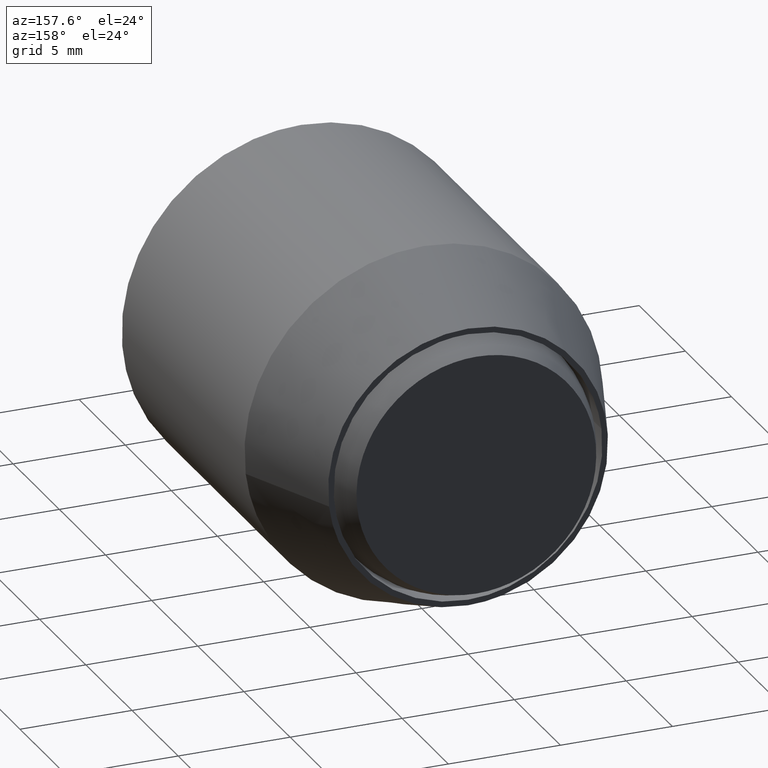
[diagram: clean part render]
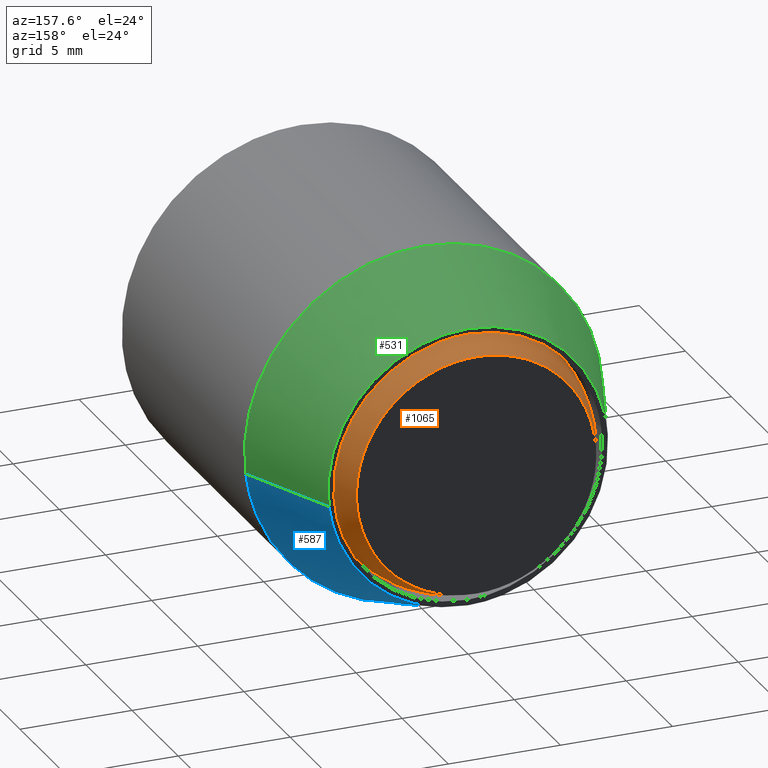
[diagram: same view with three faces highlighted in distinct colors, each labeled with its STEP entity id]
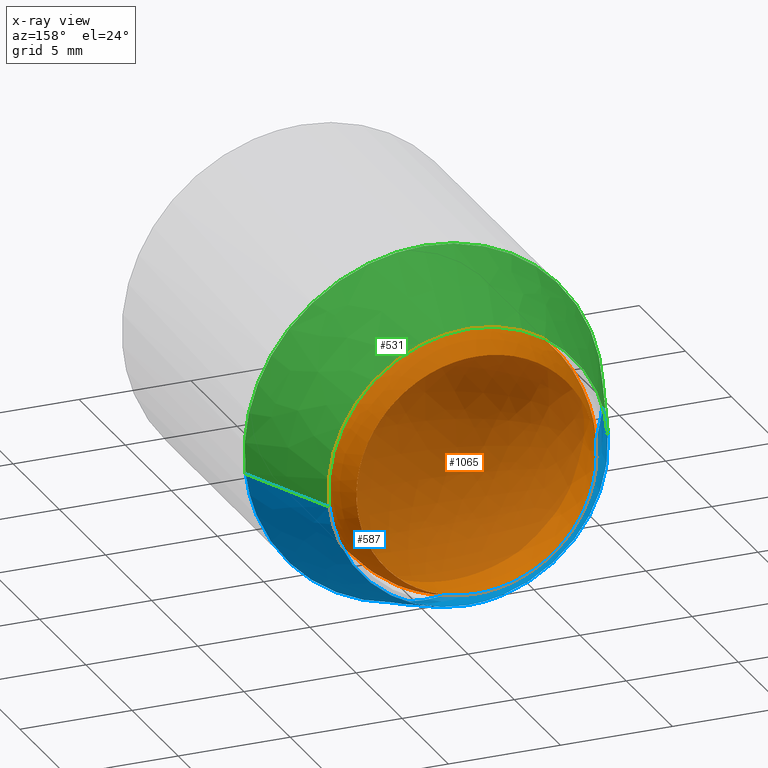
[diagram: x-ray of the same camera — body ghosted, the three highlighted faces saturated]
A machine part, auxiliary view with three faces highlighted in distinct colors.
The next image is the same camera in x-ray (body ghosted, the three faces saturated) — at least one of them is partly hidden behind the body in this view.
Their STEP definitions:

[orange] entity #1065 — the highlighted face is a freeform B-spline surface patch.
#985=CARTESIAN_POINT('',(-3.028492904751707,2.385804239656768,-3.028492904751710));
#986=CARTESIAN_POINT('',(-2.884428461843679,1.900500287936907,-3.845904615791576));
#987=CARTESIAN_POINT('',(-1.316923014224974,1.056373571428574,-5.267692056899906));
#988=CARTESIAN_POINT('',(1.316923014224978,1.056373571428573,-5.267692056899906));
#989=CARTESIAN_POINT('',(2.884428461843684,1.900500287936904,-3.845904615791576));
#990=CARTESIAN_POINT('',(3.028492904751713,2.385804239656764,-3.028492904751710));
#991=CARTESIAN_POINT('',(-3.845904615791572,1.900500287936908,-2.884428461843683));
#992=CARTESIAN_POINT('',(-3.950769042674927,1.056373571428576,-3.950769042674930));
#993=CARTESIAN_POINT('',(-2.089321569082892,-0.777943534199360,-6.267964707248678));
#994=CARTESIAN_POINT('',(2.089321569082894,-0.777943534199362,-6.267964707248678));
#995=CARTESIAN_POINT('',(3.950769042674932,1.056373571428571,-3.950769042674930));
#996=CARTESIAN_POINT('',(3.845904615791578,1.900500287936903,-2.884428461843683));
#997=CARTESIAN_POINT('',(-5.267692056899903,1.056373571428577,-1.316923014224976));
#998=CARTESIAN_POINT('',(-6.267964707248678,-0.777943534199357,-2.089321569082892));
#999=CARTESIAN_POINT('',(-5.052988182826796,-7.816155000000022,-5.052988182826790));
#1000=CARTESIAN_POINT('',(5.052988182826789,-7.816155000000029,-5.052988182826790));
#1001=CARTESIAN_POINT('',(6.267964707248678,-0.777943534199365,-2.089321569082892));
#1002=CARTESIAN_POINT('',(5.267692056899907,1.056373571428571,-1.316923014224976));
#1003=CARTESIAN_POINT('',(-5.267692056899903,1.056373571428577,1.316923014224976));
#1004=CARTESIAN_POINT('',(-6.267964707248678,-0.777943534199356,2.089321569082893));
#1005=CARTESIAN_POINT('',(-5.052988182826796,-7.816155000000018,5.052988182826794));
#1006=CARTESIAN_POINT('',(5.052988182826789,-7.816155000000025,5.052988182826794));
#1007=CARTESIAN_POINT('',(6.267964707248678,-0.777943534199364,2.089321569082893));
#1008=CARTESIAN_POINT('',(5.267692056899907,1.056373571428571,1.316923014224976));
#1009=CARTESIAN_POINT('',(-3.845904615791572,1.900500287936909,2.884428461843683));
#1010=CARTESIAN_POINT('',(-3.950769042674927,1.056373571428577,3.950769042674930));
#1011=CARTESIAN_POINT('',(-2.089321569082892,-0.777943534199358,6.267964707248678));
#1012=CARTESIAN_POINT('',(2.089321569082894,-0.777943534199361,6.267964707248678));
#1013=CARTESIAN_POINT('',(3.950769042674932,1.056373571428572,3.950769042674930));
#1014=CARTESIAN_POINT('',(3.845904615791578,1.900500287936904,2.884428461843683));
#1015=CARTESIAN_POINT('',(-3.028492904751707,2.385804239656768,3.028492904751710));
#1016=CARTESIAN_POINT('',(-2.884428461843679,1.900500287936908,3.845904615791576));
#1017=CARTESIAN_POINT('',(-1.316923014224974,1.056373571428575,5.267692056899906));
#1018=CARTESIAN_POINT('',(1.316923014224978,1.056373571428573,5.267692056899906));
#1019=CARTESIAN_POINT('',(2.884428461843684,1.900500287936905,3.845904615791576));
#1020=CARTESIAN_POINT('',(3.028492904751713,2.385804239656765,3.028492904751710));
#1028=(BOUNDED_SURFACE()B_SPLINE_SURFACE(2,2,((#985,#991,#997,#1003,#1009,#1015),(#986,#992,#998,#1004,#1010,#1016),(#987,#993,#999,#1005,#1011,#1017),(#988,#994,#1000,#1006,#1012,#1018),(#989,#995,#1001,#1007,#1013,#1019),(#990,#996,#1002,#1008,#1014,#1020)),.UNSPECIFIED.,.F.,.F.,.U.)B_SPLINE_SURFACE_WITH_KNOTS((3,1,1,1,3),(3,1,1,1,3),(0.0,7.460373557746063,14.920747115492130,22.381120673238190,29.841494230984249),(0.0,7.460373557746063,14.920747115492130,22.381120673238190,29.841494230984249),.UNSPECIFIED.)GEOMETRIC_REPRESENTATION_ITEM()RATIONAL_B_SPLINE_SURFACE(((6.673931016841607,5.255448262631205,3.836965508420803,3.836965508420803,5.255448262631205,6.673931016841607),(5.255448262631205,3.836965508420803,2.418482754210402,2.418482754210402,3.836965508420803,5.255448262631205),(3.836965508420803,2.418482754210402,1.0,1.0,2.418482754210402,3.836965508420803),(3.836965508420803,2.418482754210402,1.0,1.0,2.418482754210402,3.836965508420803),(5.255448262631205,3.836965508420803,2.418482754210402,2.418482754210402,3.836965508420803,5.255448262631205),(6.673931016841607,5.255448262631205,3.836965508420803,3.836965508420803,5.255448262631205,6.673931016841607)))REPRESENTATION_ITEM('')SURFACE());
#1029=CARTESIAN_POINT('',(0.0,0.900000000000000,-5.350000188408870));
#1030=VERTEX_POINT('',#1029);
#1031=CARTESIAN_POINT('',(0.0,0.900000000000000,5.350000188408869));
#1032=VERTEX_POINT('',#1031);
#1033=CARTESIAN_POINT('',(0.0,0.900000000000000,-5.350000188408870));
#1034=CARTESIAN_POINT('',(5.350000188408870,0.900000000000000,-5.350000188408870));
#1035=CARTESIAN_POINT('',(5.350000188408870,0.900000000000000,-4.785857E-016));
#1036=CARTESIAN_POINT('',(5.350000188408870,0.900000000000000,5.350000188408869));
#1037=CARTESIAN_POINT('',(0.0,0.900000000000000,5.350000188408869));
#1045=(BOUNDED_CURVE()B_SPLINE_CURVE(2,(#1033,#1034,#1035,#1036,#1037),.UNSPECIFIED.,.F.,.U.)B_SPLINE_CURVE_WITH_KNOTS((3,2,3),(0.0,0.250000000000000,0.500000000000000),.UNSPECIFIED.)CURVE()GEOMETRIC_REPRESENTATION_ITEM()RATIONAL_B_SPLINE_CURVE((1.0,0.707106781186548,1.0,0.707106781186548,1.0))REPRESENTATION_ITEM(''));
#1046=EDGE_CURVE('',#1030,#1032,#1045,.T.);
#1047=ORIENTED_EDGE('',*,*,#1046,.T.);
#1048=CARTESIAN_POINT('',(0.0,0.900000000000000,5.350000188408869));
#1049=CARTESIAN_POINT('',(-5.350000188408870,0.900000000000000,5.350000188408869));
#1050=CARTESIAN_POINT('',(-5.350000188408870,0.900000000000000,-4.785857E-016));
#1051=CARTESIAN_POINT('',(-5.350000188408870,0.900000000000000,-5.350000188408870));
#1052=CARTESIAN_POINT('',(0.0,0.900000000000000,-5.350000188408870));
#1060=(BOUNDED_CURVE()B_SPLINE_CURVE(2,(#1048,#1049,#1050,#1051,#1052),.UNSPECIFIED.,.F.,.U.)B_SPLINE_CURVE_WITH_KNOTS((3,2,3),(0.500000000000000,0.750000000000000,1.0),.UNSPECIFIED.)CURVE()GEOMETRIC_REPRESENTATION_ITEM()RATIONAL_B_SPLINE_CURVE((1.0,0.707106781186548,1.0,0.707106781186548,1.0))REPRESENTATION_ITEM(''));
#1061=EDGE_CURVE('',#1032,#1030,#1060,.T.);
#1062=ORIENTED_EDGE('',*,*,#1061,.T.);
#1063=EDGE_LOOP('',(#1047,#1062));
#1064=FACE_OUTER_BOUND('',#1063,.T.);
#1065=ADVANCED_FACE('',(#1064),#1028,.T.);

[blue] entity #587 — the highlighted face is a freeform B-spline surface patch.
#273=CARTESIAN_POINT('',(-1.874588268468437,-4.808085999999999,-7.777269368082868));
#274=VERTEX_POINT('',#273);
#280=CARTESIAN_POINT('',(0.0,-4.808085999999999,-8.000000000000002));
#281=VERTEX_POINT('',#280);
#282=CARTESIAN_POINT('',(-1.874588268468437,-4.808085999999999,-7.777269368082868));
#283=CARTESIAN_POINT('',(-0.950525753422238,-4.808085999999999,-8.000000000000002));
#284=CARTESIAN_POINT('',(0.0,-4.808085999999999,-8.000000000000002));
#292=(BOUNDED_CURVE()B_SPLINE_CURVE(2,(#282,#283,#284),.UNSPECIFIED.,.F.,.U.)B_SPLINE_CURVE_WITH_KNOTS((3,3),(0.959962736831104,1.0),.UNSPECIFIED.)CURVE()GEOMETRIC_REPRESENTATION_ITEM()RATIONAL_B_SPLINE_CURVE((0.921210942932808,0.953093428471923,1.0))REPRESENTATION_ITEM(''));
#293=EDGE_CURVE('',#274,#281,#292,.T.);
#295=CARTESIAN_POINT('',(7.944075678025839,-4.808083722398557,-0.944271337131582));
#296=VERTEX_POINT('',#295);
#297=CARTESIAN_POINT('',(0.0,-4.808085999999999,-8.000000000000002));
#298=CARTESIAN_POINT('',(7.105397995833197,-4.808084861199280,-7.999999951076153));
#299=CARTESIAN_POINT('',(7.944075678025839,-4.808083722398557,-0.944271337131582));
#307=(BOUNDED_CURVE()B_SPLINE_CURVE(2,(#297,#298,#299),.UNSPECIFIED.,.F.,.U.)B_SPLINE_CURVE_WITH_KNOTS((3,3),(0.0,0.229562525472899),.UNSPECIFIED.)CURVE()GEOMETRIC_REPRESENTATION_ITEM()RATIONAL_B_SPLINE_CURVE((1.0,0.731050771981190,0.956026856026257))REPRESENTATION_ITEM(''));
#308=EDGE_CURVE('',#281,#296,#307,.T.);
#327=CARTESIAN_POINT('',(-7.985077604216481,-4.808080615921306,0.488385069813843));
#328=VERTEX_POINT('',#327);
#442=CARTESIAN_POINT('',(-7.985077604216481,-4.808080615921306,0.488385069813843));
#443=CARTESIAN_POINT('',(-7.999999051485578,-4.808080714031474,0.244420452694563));
#444=CARTESIAN_POINT('',(-7.999999082489564,-4.808080816979779,-0.000000051795188));
#445=CARTESIAN_POINT('',(-7.999999881731105,-4.808083470850268,-6.300835843808900));
#446=CARTESIAN_POINT('',(-1.874588268468437,-4.808085999999999,-7.777269368082869));
#454=(BOUNDED_CURVE()B_SPLINE_CURVE(2,(#442,#443,#444,#445,#446),.UNSPECIFIED.,.F.,.U.)B_SPLINE_CURVE_WITH_KNOTS((3,2,3),(0.739333031101071,0.750000000000000,0.959962736831104),.UNSPECIFIED.)CURVE()GEOMETRIC_REPRESENTATION_ITEM()RATIONAL_B_SPLINE_CURVE((0.976072189251411,0.987502868576839,1.0,0.754013352714625,0.921210942932807))REPRESENTATION_ITEM(''));
#455=EDGE_CURVE('',#328,#274,#454,.T.);
#484=CARTESIAN_POINT('',(6.206309539772342,-2.137983E-012,-0.737713966616161));
#485=VERTEX_POINT('',#484);
#486=CARTESIAN_POINT('',(6.206309539772342,-2.137983E-012,-0.737713966616161));
#487=CARTESIAN_POINT('',(7.944075678025839,-4.808083722398557,-0.944271337131582));
#488=QUASI_UNIFORM_CURVE('',1,(#486,#487),.UNSPECIFIED.,.F.,.U.);
#489=EDGE_CURVE('',#485,#296,#488,.T.);
#508=CARTESIAN_POINT('',(-6.238341678451795,0.000002785024005,0.381550038736573));
#509=VERTEX_POINT('',#508);
#523=CARTESIAN_POINT('',(-6.238341678451795,0.000002785024005,0.381550038736573));
#524=CARTESIAN_POINT('',(-7.985077604216481,-4.808080615921306,0.488385069813843));
#525=QUASI_UNIFORM_CURVE('',1,(#523,#524),.UNSPECIFIED.,.F.,.U.);
#526=EDGE_CURVE('',#509,#328,#525,.T.);
#532=CARTESIAN_POINT('',(-6.194674092705711,0.120202150000000,0.378882498488205));
#533=CARTESIAN_POINT('',(-6.573556591193916,0.120202150000000,-5.815791594217505));
#534=CARTESIAN_POINT('',(-0.378882498488206,0.120202150000000,-6.194674092705712));
#535=CARTESIAN_POINT('',(5.471079290022653,0.120202150000000,-6.552473083471250));
#536=CARTESIAN_POINT('',(6.162865372994506,0.120202150000000,-0.732549968838508));
#537=CARTESIAN_POINT('',(-8.029838494741666,-4.931293203750000,0.491125961723621));
#538=CARTESIAN_POINT('',(-8.520964456465288,-4.931293203750001,-7.538712533018044));
#539=CARTESIAN_POINT('',(-0.491125961723622,-4.931293203750000,-8.029838494741668));
#540=CARTESIAN_POINT('',(7.091879642633344,-4.931293203750000,-8.493634986119947));
#541=CARTESIAN_POINT('',(7.988606481857203,-4.931293203750001,-0.949566974964459));
#549=(BOUNDED_SURFACE()B_SPLINE_SURFACE(2,1,((#532,#537),(#533,#538),(#534,#539),(#535,#540),(#536,#541)),.UNSPECIFIED.,.F.,.F.,.U.)B_SPLINE_SURFACE_WITH_KNOTS((3,2,3),(2,2),(0.0,13.329133553689720,26.125101765231850),(0.0,5.375689005745859),.UNSPECIFIED.)GEOMETRIC_REPRESENTATION_ITEM()RATIONAL_B_SPLINE_SURFACE(((1.0,1.0),(0.707106781186548,0.707106781186548),(1.0,1.0),(0.718822509939086,0.718822509939086),(0.977505800795127,0.977505800795127)))REPRESENTATION_ITEM('')SURFACE());
#550=ORIENTED_EDGE('',*,*,#308,.F.);
#551=ORIENTED_EDGE('',*,*,#293,.F.);
#552=ORIENTED_EDGE('',*,*,#455,.F.);
#553=ORIENTED_EDGE('',*,*,#526,.F.);
#554=CARTESIAN_POINT('',(0.0,0.0,-6.250000000000001));
#555=VERTEX_POINT('',#554);
#556=CARTESIAN_POINT('',(-6.238341678451796,0.000002785024005,0.381550038736573));
#557=CARTESIAN_POINT('',(-6.249999002763765,0.000002745001903,0.190953069299741));
#558=CARTESIAN_POINT('',(-6.249999018219906,0.000002702457179,-0.000000060047728));
#559=CARTESIAN_POINT('',(-6.249999524107872,0.000001309945177,-6.250000029106561));
#560=CARTESIAN_POINT('',(0.0,0.0,-6.250000000000001));
#568=(BOUNDED_CURVE()B_SPLINE_CURVE(2,(#556,#557,#558,#559,#560),.UNSPECIFIED.,.F.,.U.)B_SPLINE_CURVE_WITH_KNOTS((3,2,3),(0.739333052727923,0.750000000000000,1.0),.UNSPECIFIED.)CURVE()GEOMETRIC_REPRESENTATION_ITEM()RATIONAL_B_SPLINE_CURVE((0.976072235601904,0.987502893914272,1.0,0.707106781186547,1.0))REPRESENTATION_ITEM(''));
#569=EDGE_CURVE('',#509,#555,#568,.T.);
#570=ORIENTED_EDGE('',*,*,#569,.T.);
#571=CARTESIAN_POINT('',(0.0,0.0,-6.250000000000001));
#572=CARTESIAN_POINT('',(5.551090787175638,0.0,-6.250000000000003));
#573=CARTESIAN_POINT('',(6.206309539772342,-2.137983E-012,-0.737713966616161));
#581=(BOUNDED_CURVE()B_SPLINE_CURVE(2,(#571,#572,#573),.UNSPECIFIED.,.F.,.U.)B_SPLINE_CURVE_WITH_KNOTS((3,3),(0.0,0.229562473515027),.UNSPECIFIED.)CURVE()GEOMETRIC_REPRESENTATION_ITEM()RATIONAL_B_SPLINE_CURVE((1.0,0.731050832853623,0.956026754186676))REPRESENTATION_ITEM(''));
#582=EDGE_CURVE('',#555,#485,#581,.T.);
#583=ORIENTED_EDGE('',*,*,#582,.T.);
#584=ORIENTED_EDGE('',*,*,#489,.T.);
#585=EDGE_LOOP('',(#550,#551,#552,#553,#570,#583,#584));
#586=FACE_OUTER_BOUND('',#585,.T.);
#587=ADVANCED_FACE('',(#586),#549,.T.);

[green] entity #531 — the highlighted face is a freeform B-spline surface patch.
#295=CARTESIAN_POINT('',(7.944075678025839,-4.808083722398557,-0.944271337131582));
#296=VERTEX_POINT('',#295);
#310=CARTESIAN_POINT('',(0.0,-4.808085999999999,7.999999999999998));
#311=VERTEX_POINT('',#310);
#312=CARTESIAN_POINT('',(7.944075678025839,-4.808083722398557,-0.944271337131582));
#313=CARTESIAN_POINT('',(7.999999198465768,-4.808083782300880,-0.473791627893970));
#314=CARTESIAN_POINT('',(7.999999222841892,-4.808083849745175,0.000000092376777));
#315=CARTESIAN_POINT('',(7.999999634434140,-4.808084988545896,8.000000043452928));
#316=CARTESIAN_POINT('',(0.0,-4.808085999999999,7.999999999999998));
#324=(BOUNDED_CURVE()B_SPLINE_CURVE(2,(#312,#313,#314,#315,#316),.UNSPECIFIED.,.F.,.U.)B_SPLINE_CURVE_WITH_KNOTS((3,2,3),(0.229562525472899,0.250000000000000,0.500000000000000),.UNSPECIFIED.)CURVE()GEOMETRIC_REPRESENTATION_ITEM()RATIONAL_B_SPLINE_CURVE((0.956026856026257,0.976056009205358,1.0,0.707106781186548,1.0))REPRESENTATION_ITEM(''));
#325=EDGE_CURVE('',#296,#311,#324,.T.);
#327=CARTESIAN_POINT('',(-7.985077604216481,-4.808080615921306,0.488385069813843));
#328=VERTEX_POINT('',#327);
#329=CARTESIAN_POINT('',(0.0,-4.808085999999999,7.999999999999998));
#330=CARTESIAN_POINT('',(-7.525651055125307,-4.808083307960653,7.999999970089797));
#331=CARTESIAN_POINT('',(-7.985077604216481,-4.808080615921306,0.488385069813843));
#339=(BOUNDED_CURVE()B_SPLINE_CURVE(2,(#329,#330,#331),.UNSPECIFIED.,.F.,.U.)B_SPLINE_CURVE_WITH_KNOTS((3,3),(0.500000000000000,0.739333031101071),.UNSPECIFIED.)CURVE()GEOMETRIC_REPRESENTATION_ITEM()RATIONAL_B_SPLINE_CURVE((1.0,0.719603912609709,0.976072189251411))REPRESENTATION_ITEM(''));
#340=EDGE_CURVE('',#311,#328,#339,.T.);
#461=CARTESIAN_POINT('',(6.162865372994506,0.120202150000000,-0.732549968838508));
#462=CARTESIAN_POINT('',(6.183830638377910,0.120202150000000,-0.556171409609450));
#463=CARTESIAN_POINT('',(6.194674092705711,0.120202150000000,-0.378882498488207));
#464=CARTESIAN_POINT('',(6.573556591193916,0.120202150000000,5.815791594217503));
#465=CARTESIAN_POINT('',(0.378882498488206,0.120202150000000,6.194674092705710));
#466=CARTESIAN_POINT('',(-5.815791594217505,0.120202150000000,6.573556591193915));
#467=CARTESIAN_POINT('',(-6.194674092705711,0.120202150000000,0.378882498488205));
#468=CARTESIAN_POINT('',(7.988606481857203,-4.931293203750001,-0.949566974964459));
#469=CARTESIAN_POINT('',(8.015782680719120,-4.931293203750000,-0.720936489591182));
#470=CARTESIAN_POINT('',(8.029838494741666,-4.931293203750000,-0.491125961723624));
#471=CARTESIAN_POINT('',(8.520964456465288,-4.931293203750001,7.538712533018043));
#472=CARTESIAN_POINT('',(0.491125961723622,-4.931293203750000,8.029838494741664));
#473=CARTESIAN_POINT('',(-7.538712533018044,-4.931293203750001,8.520964456465288));
#474=CARTESIAN_POINT('',(-8.029838494741666,-4.931293203750000,0.491125961723621));
#482=(BOUNDED_SURFACE()B_SPLINE_SURFACE(2,1,((#461,#468),(#462,#469),(#463,#470),(#464,#471),(#465,#472),(#466,#473),(#467,#474)),.UNSPECIFIED.,.F.,.F.,.U.)B_SPLINE_SURFACE_WITH_KNOTS((3,2,2,3),(2,2),(0.0,0.533165342147589,13.862298895837300,27.191432449527021),(0.0,5.375689005745860),.UNSPECIFIED.)GEOMETRIC_REPRESENTATION_ITEM()RATIONAL_B_SPLINE_SURFACE(((0.977505800795127,0.977505800795127),(0.988284271247462,0.988284271247462),(1.0,1.0),(0.707106781186548,0.707106781186548),(1.0,1.0),(0.707106781186548,0.707106781186548),(1.0,1.0)))REPRESENTATION_ITEM('')SURFACE());
#483=ORIENTED_EDGE('',*,*,#325,.F.);
#484=CARTESIAN_POINT('',(6.206309539772342,-2.137983E-012,-0.737713966616161));
#485=VERTEX_POINT('',#484);
#486=CARTESIAN_POINT('',(6.206309539772342,-2.137983E-012,-0.737713966616161));
#487=CARTESIAN_POINT('',(7.944075678025839,-4.808083722398557,-0.944271337131582));
#488=QUASI_UNIFORM_CURVE('',1,(#486,#487),.UNSPECIFIED.,.F.,.U.);
#489=EDGE_CURVE('',#485,#296,#488,.T.);
#490=ORIENTED_EDGE('',*,*,#489,.F.);
#491=CARTESIAN_POINT('',(0.0,0.0,6.249999999999999));
#492=VERTEX_POINT('',#491);
#493=CARTESIAN_POINT('',(6.206309539772342,-2.137983E-012,-0.737713966616161));
#494=CARTESIAN_POINT('',(6.250000000000000,0.0,-0.370150747835887));
#495=CARTESIAN_POINT('',(6.250000000000000,0.0,-1.291960E-015));
#496=CARTESIAN_POINT('',(6.249999999999999,0.0,6.249999999999999));
#497=CARTESIAN_POINT('',(0.0,0.0,6.249999999999999));
#505=(BOUNDED_CURVE()B_SPLINE_CURVE(2,(#493,#494,#495,#496,#497),.UNSPECIFIED.,.F.,.U.)B_SPLINE_CURVE_WITH_KNOTS((3,2,3),(0.229562473515027,0.250000000000000,0.500000000000000),.UNSPECIFIED.)CURVE()GEOMETRIC_REPRESENTATION_ITEM()RATIONAL_B_SPLINE_CURVE((0.956026754186676,0.976055948332925,1.0,0.707106781186547,1.0))REPRESENTATION_ITEM(''));
#506=EDGE_CURVE('',#485,#492,#505,.T.);
#507=ORIENTED_EDGE('',*,*,#506,.T.);
#508=CARTESIAN_POINT('',(-6.238341678451795,0.000002785024005,0.381550038736573));
#509=VERTEX_POINT('',#508);
#510=CARTESIAN_POINT('',(0.0,0.0,6.249999999999999));
#511=CARTESIAN_POINT('',(-5.879415501281227,0.000001392512002,6.249999969058832));
#512=CARTESIAN_POINT('',(-6.238341678451796,0.000002785024005,0.381550038736573));
#520=(BOUNDED_CURVE()B_SPLINE_CURVE(2,(#510,#511,#512),.UNSPECIFIED.,.F.,.U.)B_SPLINE_CURVE_WITH_KNOTS((3,3),(0.500000000000000,0.739333052727923),.UNSPECIFIED.)CURVE()GEOMETRIC_REPRESENTATION_ITEM()RATIONAL_B_SPLINE_CURVE((1.0,0.719603887272276,0.976072235601904))REPRESENTATION_ITEM(''));
#521=EDGE_CURVE('',#492,#509,#520,.T.);
#522=ORIENTED_EDGE('',*,*,#521,.T.);
#523=CARTESIAN_POINT('',(-6.238341678451795,0.000002785024005,0.381550038736573));
#524=CARTESIAN_POINT('',(-7.985077604216481,-4.808080615921306,0.488385069813843));
#525=QUASI_UNIFORM_CURVE('',1,(#523,#524),.UNSPECIFIED.,.F.,.U.);
#526=EDGE_CURVE('',#509,#328,#525,.T.);
#527=ORIENTED_EDGE('',*,*,#526,.T.);
#528=ORIENTED_EDGE('',*,*,#340,.F.);
#529=EDGE_LOOP('',(#483,#490,#507,#522,#527,#528));
#530=FACE_OUTER_BOUND('',#529,.T.);
#531=ADVANCED_FACE('',(#530),#482,.T.);